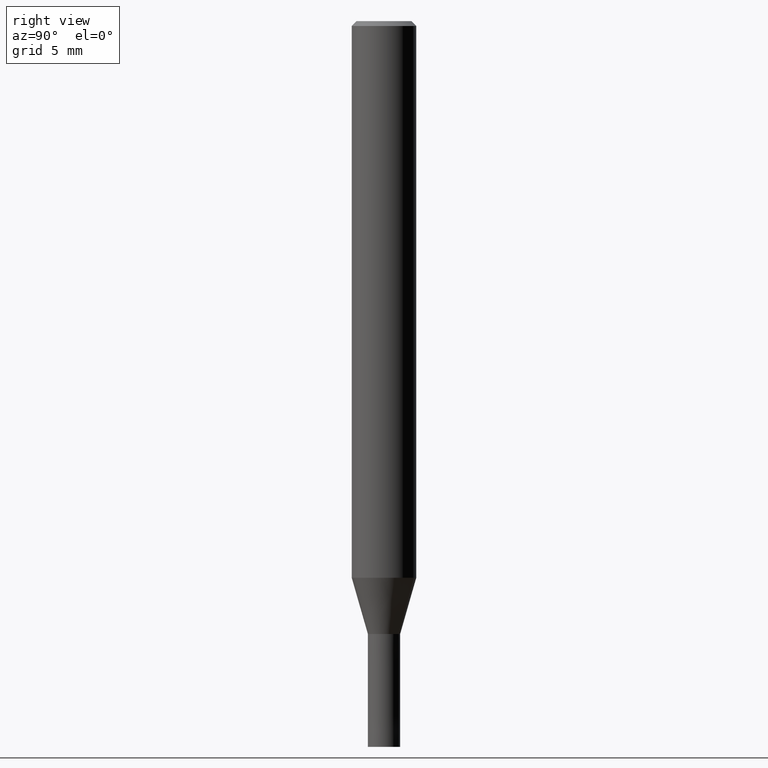
[diagram: clean part render]
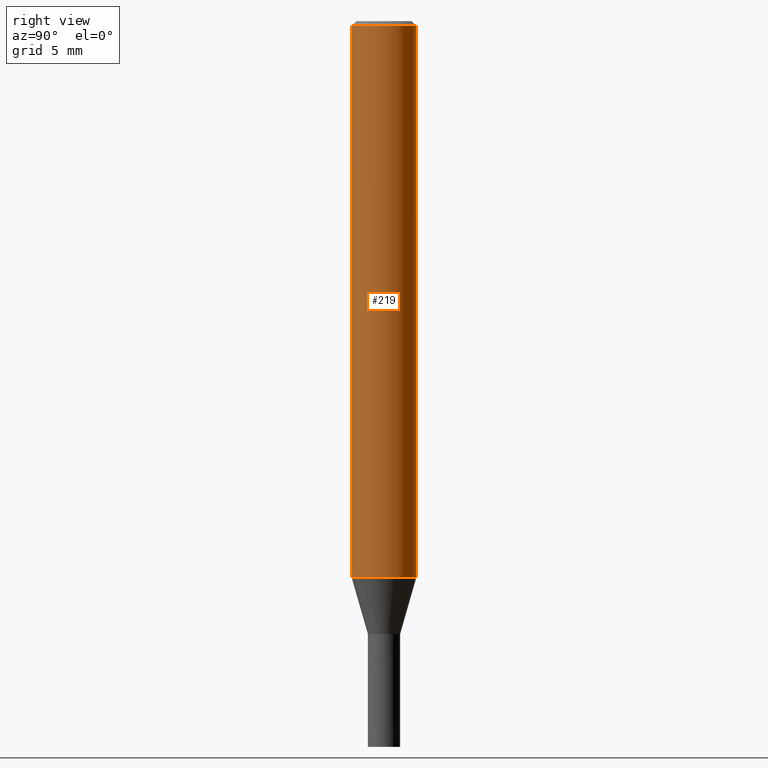
[diagram: same view with one face highlighted and labeled with its STEP entity id]
A machine part, right view. The second image highlights one B-rep face of the part: STEP entity #219.
In plain terms, the highlighted cylindrical surface (edge-blend (fillet) strip) has radius 2 mm, axis along (-0, -0, 1).
Its self-contained STEP definition (entity closure, byte-faithful):
#109=VERTEX_POINT('',#280);
#119=EDGE_CURVE('',#109,#181,#292,.T.);
#133=VERTEX_POINT('',#309);
#171=VERTEX_POINT('',#356);
#181=VERTEX_POINT('',#367);
#203=EDGE_CURVE('',#171,#133,#390,.T.);
#219=ADVANCED_FACE('',(#407),#408,.T.);
#221=EDGE_CURVE('',#171,#181,#410,.T.);
#227=EDGE_CURVE('',#133,#109,#418,.T.);
#280=CARTESIAN_POINT('',(2.44921270764475E-016,-2.0,-34.513));
#292=LINE('',#479,#480);
#309=CARTESIAN_POINT('',(0.0,2.0,-34.513));
#356=CARTESIAN_POINT('',(0.0,2.0,-0.299999999999997));
#367=CARTESIAN_POINT('',(2.44921270764475E-016,-2.0,-0.299999999999997));
#390=LINE('',#600,#601);
#407=FACE_OUTER_BOUND('',#625,.T.);
#408=CYLINDRICAL_SURFACE('',#626,2.0);
#410=CIRCLE('',#629,2.0);
#418=CIRCLE('',#637,2.0);
#479=CARTESIAN_POINT('',(2.44921270764475E-016,-2.0,-17.4065));
#480=VECTOR('',#702,1.0);
#600=CARTESIAN_POINT('',(-2.44921270764475E-016,2.0,-17.4065));
#601=VECTOR('',#831,1.0);
#625=EDGE_LOOP('',(#852,#853,#854,#855));
#626=AXIS2_PLACEMENT_3D('',#856,#857,#858);
#629=AXIS2_PLACEMENT_3D('',#859,#860,#861);
#637=AXIS2_PLACEMENT_3D('',#871,#872,#873);
#702=DIRECTION('',(-0.0,-0.0,1.0));
#831=DIRECTION('',(0.0,0.0,-1.0));
#852=ORIENTED_EDGE('',*,*,#203,.F.);
#853=ORIENTED_EDGE('',*,*,#221,.T.);
#854=ORIENTED_EDGE('',*,*,#119,.F.);
#855=ORIENTED_EDGE('',*,*,#227,.F.);
#856=CARTESIAN_POINT('',(0.0,0.0,-17.4065));
#857=DIRECTION('',(-0.0,-0.0,1.0));
#858=DIRECTION('',(0.0,1.0,0.0));
#859=CARTESIAN_POINT('',(0.0,0.0,-0.299999999999997));
#860=DIRECTION('',(0.0,0.0,-1.0));
#861=DIRECTION('',(0.0,1.0,0.0));
#871=CARTESIAN_POINT('',(0.0,0.0,-34.513));
#872=DIRECTION('',(0.0,0.0,-1.0));
#873=DIRECTION('',(0.0,1.0,0.0));